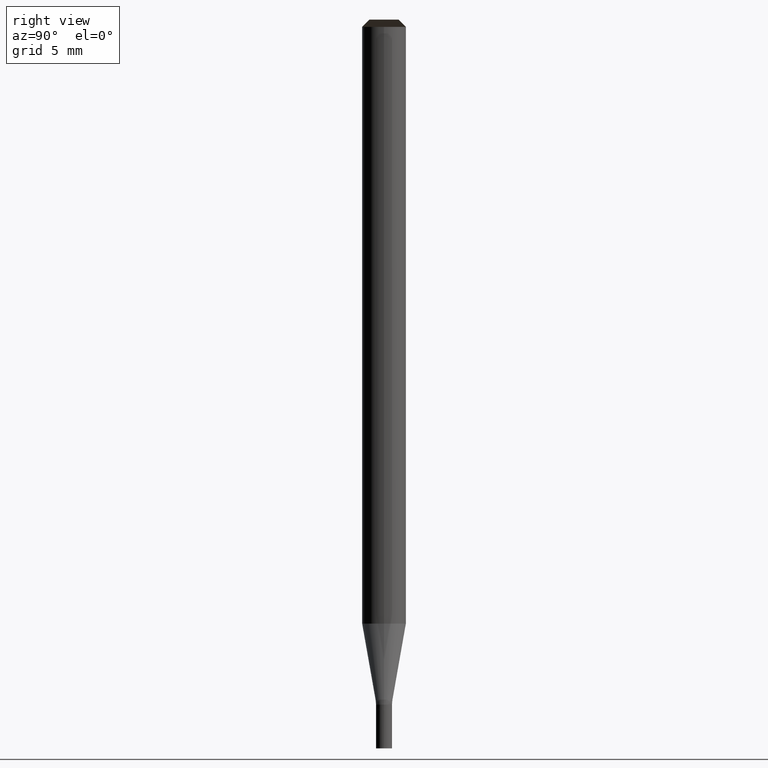
[diagram: clean part render]
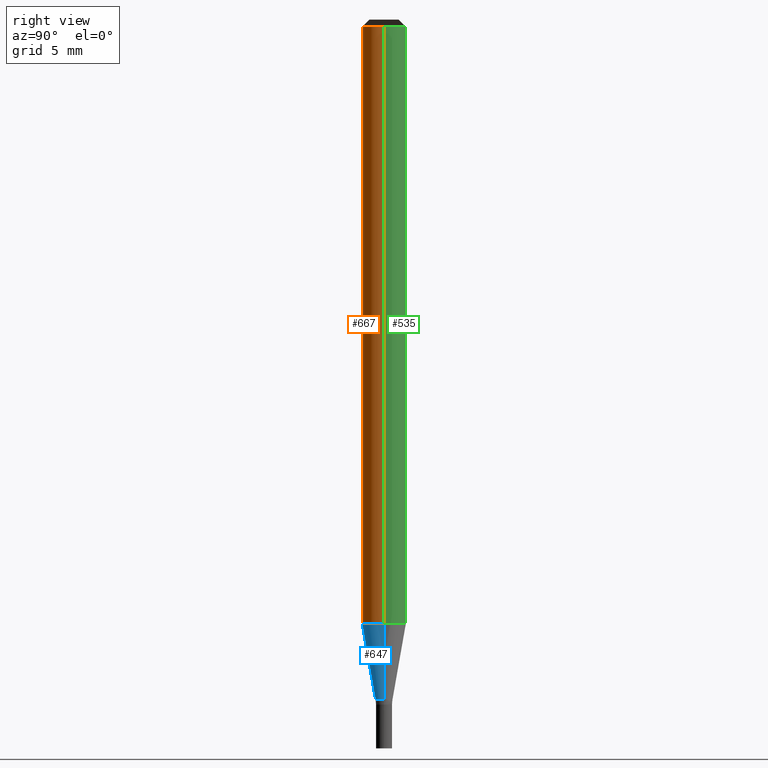
[diagram: same view with three faces highlighted in distinct colors, each labeled with its STEP entity id]
A machine part, right view with three faces highlighted in distinct colors.
Their STEP definitions:

[orange] entity #667 — the highlighted face is a freeform B-spline surface patch.
#293=CARTESIAN_POINT('',(1.5,0.0,-0.0));
#297=CARTESIAN_POINT('',(-1.5,0.0,-0.0));
#298=CARTESIAN_POINT('',(1.5,0.0,40.937304944311));
#302=CARTESIAN_POINT('',(-1.5,0.0,40.937304944311));
#318=CARTESIAN_POINT('',(-1.5,-1.5,-0.0));
#319=CARTESIAN_POINT('',(0.0,-1.5,-0.0));
#320=CARTESIAN_POINT('',(1.5,-1.5,-0.0));
#321=CARTESIAN_POINT('',(-1.5,-1.5,40.937304944311));
#322=CARTESIAN_POINT('',(0.0,-1.5,40.937304944311));
#323=CARTESIAN_POINT('',(1.5,-1.5,40.937304944311));
#648=(
BOUNDED_SURFACE()
B_SPLINE_SURFACE(1,2,(
(#297,#318,#319,#320,#293),
(#302,#321,#322,#323,#298)
), .UNSPECIFIED.,.F.,.F.,.F.)
B_SPLINE_SURFACE_WITH_KNOTS((2,2),(3,2,3),(
0.0,1.0),(
0.0,0.5,1.0), .UNSPECIFIED.)
GEOMETRIC_REPRESENTATION_ITEM()
RATIONAL_B_SPLINE_SURFACE(((1.0,0.707106781187,1.0,0.707106781187,1.0),
(1.0,0.707106781187,1.0,0.707106781187,1.0)
))
REPRESENTATION_ITEM('')
SURFACE()
);
#649=(
BOUNDED_CURVE()
B_SPLINE_CURVE(2,(#293,#320,#319,#318,#297),.UNSPECIFIED.,.F.,.F.)
B_SPLINE_CURVE_WITH_KNOTS((3,2,3),
(0.0,0.5,1.0),.UNSPECIFIED.)
CURVE()
GEOMETRIC_REPRESENTATION_ITEM()
RATIONAL_B_SPLINE_CURVE((1.0,0.707106781187,1.0,0.707106781187,1.0))
REPRESENTATION_ITEM('')
);
#650=(
BOUNDED_CURVE()
B_SPLINE_CURVE(1,(#297,#302),.UNSPECIFIED.,.F.,.F.)
B_SPLINE_CURVE_WITH_KNOTS((2,2),
(0.0,1.0),.UNSPECIFIED.)
CURVE()
GEOMETRIC_REPRESENTATION_ITEM()
RATIONAL_B_SPLINE_CURVE((1.0,1.0))
REPRESENTATION_ITEM('')
);
#651=(
BOUNDED_CURVE()
B_SPLINE_CURVE(2,(#302,#321,#322,#323,#298),.UNSPECIFIED.,.F.,.F.)
B_SPLINE_CURVE_WITH_KNOTS((3,2,3),
(0.0,0.5,1.0),.UNSPECIFIED.)
CURVE()
GEOMETRIC_REPRESENTATION_ITEM()
RATIONAL_B_SPLINE_CURVE((1.0,0.707106781187,1.0,0.707106781187,1.0))
REPRESENTATION_ITEM('')
);
#652=(
BOUNDED_CURVE()
B_SPLINE_CURVE(1,(#298,#293),.UNSPECIFIED.,.F.,.F.)
B_SPLINE_CURVE_WITH_KNOTS((2,2),
(0.0,1.0),.UNSPECIFIED.)
CURVE()
GEOMETRIC_REPRESENTATION_ITEM()
RATIONAL_B_SPLINE_CURVE((1.0,1.0))
REPRESENTATION_ITEM('')
);
#653=VERTEX_POINT('',#293);
#654=VERTEX_POINT('',#297);
#655=VERTEX_POINT('',#298);
#656=VERTEX_POINT('',#302);
#657=EDGE_CURVE('',#653,#654,#649,.T.);
#658=EDGE_CURVE('',#654,#656,#650,.T.);
#659=EDGE_CURVE('',#656,#655,#651,.T.);
#660=EDGE_CURVE('',#655,#653,#652,.T.);
#661=ORIENTED_EDGE('',*,*,#657,.T.);
#662=ORIENTED_EDGE('',*,*,#658,.T.);
#663=ORIENTED_EDGE('',*,*,#659,.T.);
#664=ORIENTED_EDGE('',*,*,#660,.T.);
#665=EDGE_LOOP('',(#661,#662,#663,#664));
#666=FACE_OUTER_BOUND('',#665,.T.);
#667=ADVANCED_FACE('',(#666),#648,.T.);

[blue] entity #647 — the highlighted face is a freeform B-spline surface patch.
#288=CARTESIAN_POINT('',(0.580384493976,0.0,-5.215398700355));
#292=CARTESIAN_POINT('',(-0.580384493976,0.0,-5.215398700355));
#293=CARTESIAN_POINT('',(1.5,0.0,-0.0));
#297=CARTESIAN_POINT('',(-1.5,0.0,-0.0));
#315=CARTESIAN_POINT('',(-0.580384493976,-0.580384493976,-5.215398700355));
#316=CARTESIAN_POINT('',(0.0,-0.580384493976,-5.215398700355));
#317=CARTESIAN_POINT('',(0.580384493976,-0.580384493976,-5.215398700355));
#318=CARTESIAN_POINT('',(-1.5,-1.5,-0.0));
#319=CARTESIAN_POINT('',(0.0,-1.5,-0.0));
#320=CARTESIAN_POINT('',(1.5,-1.5,-0.0));
#628=(
BOUNDED_SURFACE()
B_SPLINE_SURFACE(1,2,(
(#292,#315,#316,#317,#288),
(#297,#318,#319,#320,#293)
), .UNSPECIFIED.,.F.,.F.,.F.)
B_SPLINE_SURFACE_WITH_KNOTS((2,2),(3,2,3),(
0.0,1.0),(
0.0,0.5,1.0), .UNSPECIFIED.)
GEOMETRIC_REPRESENTATION_ITEM()
RATIONAL_B_SPLINE_SURFACE(((1.0,0.707106781187,1.0,0.707106781187,1.0),
(1.0,0.707106781187,1.0,0.707106781187,1.0)
))
REPRESENTATION_ITEM('')
SURFACE()
);
#629=(
BOUNDED_CURVE()
B_SPLINE_CURVE(2,(#288,#317,#316,#315,#292),.UNSPECIFIED.,.F.,.F.)
B_SPLINE_CURVE_WITH_KNOTS((3,2,3),
(0.0,0.5,1.0),.UNSPECIFIED.)
CURVE()
GEOMETRIC_REPRESENTATION_ITEM()
RATIONAL_B_SPLINE_CURVE((1.0,0.707106781187,1.0,0.707106781187,1.0))
REPRESENTATION_ITEM('')
);
#630=(
BOUNDED_CURVE()
B_SPLINE_CURVE(1,(#292,#297),.UNSPECIFIED.,.F.,.F.)
B_SPLINE_CURVE_WITH_KNOTS((2,2),
(0.0,1.0),.UNSPECIFIED.)
CURVE()
GEOMETRIC_REPRESENTATION_ITEM()
RATIONAL_B_SPLINE_CURVE((1.0,1.0))
REPRESENTATION_ITEM('')
);
#631=(
BOUNDED_CURVE()
B_SPLINE_CURVE(2,(#297,#318,#319,#320,#293),.UNSPECIFIED.,.F.,.F.)
B_SPLINE_CURVE_WITH_KNOTS((3,2,3),
(0.0,0.5,1.0),.UNSPECIFIED.)
CURVE()
GEOMETRIC_REPRESENTATION_ITEM()
RATIONAL_B_SPLINE_CURVE((1.0,0.707106781187,1.0,0.707106781187,1.0))
REPRESENTATION_ITEM('')
);
#632=(
BOUNDED_CURVE()
B_SPLINE_CURVE(1,(#293,#288),.UNSPECIFIED.,.F.,.F.)
B_SPLINE_CURVE_WITH_KNOTS((2,2),
(0.0,1.0),.UNSPECIFIED.)
CURVE()
GEOMETRIC_REPRESENTATION_ITEM()
RATIONAL_B_SPLINE_CURVE((1.0,1.0))
REPRESENTATION_ITEM('')
);
#633=VERTEX_POINT('',#288);
#634=VERTEX_POINT('',#292);
#635=VERTEX_POINT('',#293);
#636=VERTEX_POINT('',#297);
#637=EDGE_CURVE('',#633,#634,#629,.T.);
#638=EDGE_CURVE('',#634,#636,#630,.T.);
#639=EDGE_CURVE('',#636,#635,#631,.T.);
#640=EDGE_CURVE('',#635,#633,#632,.T.);
#641=ORIENTED_EDGE('',*,*,#637,.T.);
#642=ORIENTED_EDGE('',*,*,#638,.T.);
#643=ORIENTED_EDGE('',*,*,#639,.T.);
#644=ORIENTED_EDGE('',*,*,#640,.T.);
#645=EDGE_LOOP('',(#641,#642,#643,#644));
#646=FACE_OUTER_BOUND('',#645,.T.);
#647=ADVANCED_FACE('',(#646),#628,.T.);

[green] entity #535 — the highlighted face is a freeform B-spline surface patch.
#293=CARTESIAN_POINT('',(1.5,0.0,-0.0));
#294=CARTESIAN_POINT('',(1.5,1.5,-0.0));
#295=CARTESIAN_POINT('',(0.0,1.5,-0.0));
#296=CARTESIAN_POINT('',(-1.5,1.5,-0.0));
#297=CARTESIAN_POINT('',(-1.5,0.0,-0.0));
#298=CARTESIAN_POINT('',(1.5,0.0,40.937304944311));
#299=CARTESIAN_POINT('',(1.5,1.5,40.937304944311));
#300=CARTESIAN_POINT('',(0.0,1.5,40.937304944311));
#301=CARTESIAN_POINT('',(-1.5,1.5,40.937304944311));
#302=CARTESIAN_POINT('',(-1.5,0.0,40.937304944311));
#516=(
BOUNDED_SURFACE()
B_SPLINE_SURFACE(1,2,(
(#293,#294,#295,#296,#297),
(#298,#299,#300,#301,#302)
), .UNSPECIFIED.,.F.,.F.,.F.)
B_SPLINE_SURFACE_WITH_KNOTS((2,2),(3,2,3),(
0.0,1.0),(
0.0,0.5,1.0), .UNSPECIFIED.)
GEOMETRIC_REPRESENTATION_ITEM()
RATIONAL_B_SPLINE_SURFACE(((1.0,0.707106781187,1.0,0.707106781187,1.0),
(1.0,0.707106781187,1.0,0.707106781187,1.0)
))
REPRESENTATION_ITEM('')
SURFACE()
);
#517=(
BOUNDED_CURVE()
B_SPLINE_CURVE(2,(#297,#296,#295,#294,#293),.UNSPECIFIED.,.F.,.F.)
B_SPLINE_CURVE_WITH_KNOTS((3,2,3),
(0.0,0.5,1.0),.UNSPECIFIED.)
CURVE()
GEOMETRIC_REPRESENTATION_ITEM()
RATIONAL_B_SPLINE_CURVE((1.0,0.707106781187,1.0,0.707106781187,1.0))
REPRESENTATION_ITEM('')
);
#518=(
BOUNDED_CURVE()
B_SPLINE_CURVE(1,(#293,#298),.UNSPECIFIED.,.F.,.F.)
B_SPLINE_CURVE_WITH_KNOTS((2,2),
(0.0,1.0),.UNSPECIFIED.)
CURVE()
GEOMETRIC_REPRESENTATION_ITEM()
RATIONAL_B_SPLINE_CURVE((1.0,1.0))
REPRESENTATION_ITEM('')
);
#519=(
BOUNDED_CURVE()
B_SPLINE_CURVE(2,(#298,#299,#300,#301,#302),.UNSPECIFIED.,.F.,.F.)
B_SPLINE_CURVE_WITH_KNOTS((3,2,3),
(0.0,0.5,1.0),.UNSPECIFIED.)
CURVE()
GEOMETRIC_REPRESENTATION_ITEM()
RATIONAL_B_SPLINE_CURVE((1.0,0.707106781187,1.0,0.707106781187,1.0))
REPRESENTATION_ITEM('')
);
#520=(
BOUNDED_CURVE()
B_SPLINE_CURVE(1,(#302,#297),.UNSPECIFIED.,.F.,.F.)
B_SPLINE_CURVE_WITH_KNOTS((2,2),
(0.0,1.0),.UNSPECIFIED.)
CURVE()
GEOMETRIC_REPRESENTATION_ITEM()
RATIONAL_B_SPLINE_CURVE((1.0,1.0))
REPRESENTATION_ITEM('')
);
#521=VERTEX_POINT('',#293);
#522=VERTEX_POINT('',#297);
#523=VERTEX_POINT('',#298);
#524=VERTEX_POINT('',#302);
#525=EDGE_CURVE('',#522,#521,#517,.T.);
#526=EDGE_CURVE('',#521,#523,#518,.T.);
#527=EDGE_CURVE('',#523,#524,#519,.T.);
#528=EDGE_CURVE('',#524,#522,#520,.T.);
#529=ORIENTED_EDGE('',*,*,#525,.T.);
#530=ORIENTED_EDGE('',*,*,#526,.T.);
#531=ORIENTED_EDGE('',*,*,#527,.T.);
#532=ORIENTED_EDGE('',*,*,#528,.T.);
#533=EDGE_LOOP('',(#529,#530,#531,#532));
#534=FACE_OUTER_BOUND('',#533,.T.);
#535=ADVANCED_FACE('',(#534),#516,.T.);